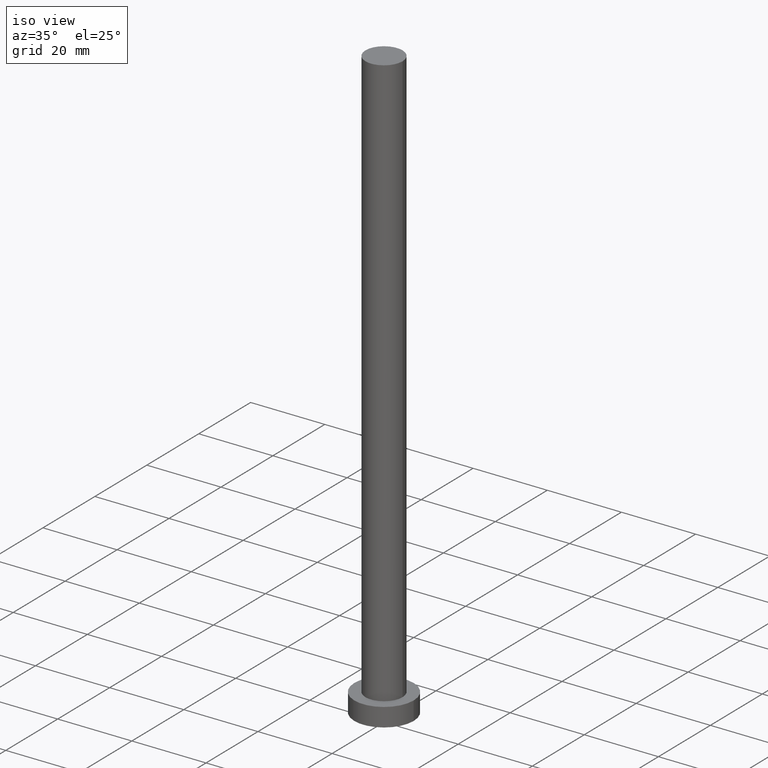
[diagram: clean part render]
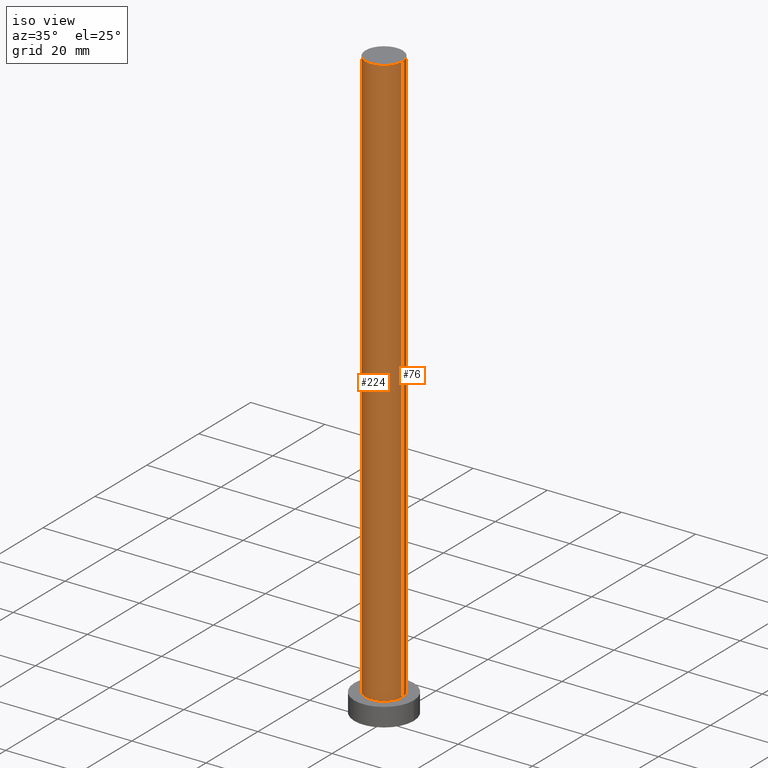
[diagram: same view with one multi-face feature highlighted, each face labeled with its STEP entity id]
A machine part, iso view. The highlighted faces form ONE feature: a constant-radius fillet chain: 2 tangent blend faces with common blend radius 5 mm. The faces share edges in the B-rep.
Their STEP definitions:
[1] entity #76 (Cylinder):
#9 = DIRECTION ( 'NONE',  ( -1.000000000000000000, 0.000000000000000000, 0.000000000000000000 ) ) ;
#30 = FACE_OUTER_BOUND ( 'NONE', #109, .T. ) ;
#35 = ORIENTED_EDGE ( 'NONE', *, *, #51, .T. ) ;
#48 = CARTESIAN_POINT ( 'NONE',  ( 0.000000000000000000, 0.000000000000000000, 5.000000000000000000 ) ) ;
#51 = EDGE_CURVE ( 'NONE', #152, #147, #107, .T. ) ;
#56 = VERTEX_POINT ( 'NONE', #92 ) ;
#64 = EDGE_CURVE ( 'NONE', #56, #187, #161, .T. ) ;
#73 = CARTESIAN_POINT ( 'NONE',  ( 5.000000000000000000, 6.123233995736766282E-16, 5.000000000000000000 ) ) ;
#76 = ADVANCED_FACE ( 'NONE', ( #30 ), #132, .T. ) ;
#78 = VECTOR ( 'NONE', #141, 1000.000000000000000 ) ;
#83 = AXIS2_PLACEMENT_3D ( 'NONE', #246, #209, #9 ) ;
#90 = AXIS2_PLACEMENT_3D ( 'NONE', #208, #244, #173 ) ;
#92 = CARTESIAN_POINT ( 'NONE',  ( 5.000000000000000000, 6.123233995736766282E-16, 160.0000000000000000 ) ) ;
#98 = LINE ( 'NONE', #178, #227 ) ;
#107 = CIRCLE ( 'NONE', #211, 5.000000000000000000 ) ;
#109 = EDGE_LOOP ( 'NONE', ( #247, #206, #35, #134 ) ) ;
#114 = EDGE_CURVE ( 'NONE', #56, #152, #216, .T. ) ;
#131 = DIRECTION ( 'NONE',  ( 0.000000000000000000, 0.000000000000000000, 1.000000000000000000 ) ) ;
#132 = CYLINDRICAL_SURFACE ( 'NONE', #83, 5.000000000000000000 ) ;
#134 = ORIENTED_EDGE ( 'NONE', *, *, #182, .F. ) ;
#141 = DIRECTION ( 'NONE',  ( -0.000000000000000000, -0.000000000000000000, -1.000000000000000000 ) ) ;
#147 = VERTEX_POINT ( 'NONE', #197 ) ;
#152 = VERTEX_POINT ( 'NONE', #73 ) ;
#161 = CIRCLE ( 'NONE', #90, 5.000000000000000000 ) ;
#173 = DIRECTION ( 'NONE',  ( 1.000000000000000000, 0.000000000000000000, 0.000000000000000000 ) ) ;
#178 = CARTESIAN_POINT ( 'NONE',  ( -5.000000000000000000, 0.000000000000000000, 160.0000000000000000 ) ) ;
#182 = EDGE_CURVE ( 'NONE', #187, #147, #98, .T. ) ;
#187 = VERTEX_POINT ( 'NONE', #215 ) ;
#193 = DIRECTION ( 'NONE',  ( 1.000000000000000000, 0.000000000000000000, 0.000000000000000000 ) ) ;
#195 = CARTESIAN_POINT ( 'NONE',  ( 5.000000000000000000, 6.123233995736766282E-16, 160.0000000000000000 ) ) ;
#197 = CARTESIAN_POINT ( 'NONE',  ( -5.000000000000000000, 0.000000000000000000, 5.000000000000000000 ) ) ;
#206 = ORIENTED_EDGE ( 'NONE', *, *, #114, .T. ) ;
#208 = CARTESIAN_POINT ( 'NONE',  ( 0.000000000000000000, 0.000000000000000000, 160.0000000000000000 ) ) ;
#209 = DIRECTION ( 'NONE',  ( -0.000000000000000000, -0.000000000000000000, -1.000000000000000000 ) ) ;
#211 = AXIS2_PLACEMENT_3D ( 'NONE', #48, #131, #193 ) ;
#215 = CARTESIAN_POINT ( 'NONE',  ( -5.000000000000000000, 0.000000000000000000, 160.0000000000000000 ) ) ;
#216 = LINE ( 'NONE', #195, #78 ) ;
#227 = VECTOR ( 'NONE', #249, 1000.000000000000000 ) ;
#244 = DIRECTION ( 'NONE',  ( 0.000000000000000000, 0.000000000000000000, 1.000000000000000000 ) ) ;
#246 = CARTESIAN_POINT ( 'NONE',  ( 0.000000000000000000, 0.000000000000000000, 160.0000000000000000 ) ) ;
#247 = ORIENTED_EDGE ( 'NONE', *, *, #64, .F. ) ;
#249 = DIRECTION ( 'NONE',  ( -0.000000000000000000, -0.000000000000000000, -1.000000000000000000 ) ) ;
[2] entity #224 (Cylinder):
#14 = CYLINDRICAL_SURFACE ( 'NONE', #139, 5.000000000000000000 ) ;
#37 = DIRECTION ( 'NONE',  ( 0.000000000000000000, 0.000000000000000000, 1.000000000000000000 ) ) ;
#38 = CARTESIAN_POINT ( 'NONE',  ( 0.000000000000000000, 0.000000000000000000, 160.0000000000000000 ) ) ;
#47 = CIRCLE ( 'NONE', #242, 5.000000000000000000 ) ;
#56 = VERTEX_POINT ( 'NONE', #92 ) ;
#58 = FACE_OUTER_BOUND ( 'NONE', #169, .T. ) ;
#59 = CARTESIAN_POINT ( 'NONE',  ( 0.000000000000000000, 0.000000000000000000, 160.0000000000000000 ) ) ;
#67 = AXIS2_PLACEMENT_3D ( 'NONE', #38, #37, #237 ) ;
#73 = CARTESIAN_POINT ( 'NONE',  ( 5.000000000000000000, 6.123233995736766282E-16, 5.000000000000000000 ) ) ;
#78 = VECTOR ( 'NONE', #141, 1000.000000000000000 ) ;
#92 = CARTESIAN_POINT ( 'NONE',  ( 5.000000000000000000, 6.123233995736766282E-16, 160.0000000000000000 ) ) ;
#98 = LINE ( 'NONE', #178, #227 ) ;
#112 = ORIENTED_EDGE ( 'NONE', *, *, #146, .T. ) ;
#114 = EDGE_CURVE ( 'NONE', #56, #152, #216, .T. ) ;
#116 = ORIENTED_EDGE ( 'NONE', *, *, #150, .F. ) ;
#118 = CARTESIAN_POINT ( 'NONE',  ( 0.000000000000000000, 0.000000000000000000, 5.000000000000000000 ) ) ;
#122 = CIRCLE ( 'NONE', #67, 5.000000000000000000 ) ;
#139 = AXIS2_PLACEMENT_3D ( 'NONE', #59, #214, #199 ) ;
#141 = DIRECTION ( 'NONE',  ( -0.000000000000000000, -0.000000000000000000, -1.000000000000000000 ) ) ;
#146 = EDGE_CURVE ( 'NONE', #147, #152, #47, .T. ) ;
#147 = VERTEX_POINT ( 'NONE', #197 ) ;
#150 = EDGE_CURVE ( 'NONE', #187, #56, #122, .T. ) ;
#152 = VERTEX_POINT ( 'NONE', #73 ) ;
#169 = EDGE_LOOP ( 'NONE', ( #210, #116, #194, #112 ) ) ;
#178 = CARTESIAN_POINT ( 'NONE',  ( -5.000000000000000000, 0.000000000000000000, 160.0000000000000000 ) ) ;
#182 = EDGE_CURVE ( 'NONE', #187, #147, #98, .T. ) ;
#187 = VERTEX_POINT ( 'NONE', #215 ) ;
#194 = ORIENTED_EDGE ( 'NONE', *, *, #182, .T. ) ;
#195 = CARTESIAN_POINT ( 'NONE',  ( 5.000000000000000000, 6.123233995736766282E-16, 160.0000000000000000 ) ) ;
#196 = DIRECTION ( 'NONE',  ( 0.000000000000000000, 0.000000000000000000, 1.000000000000000000 ) ) ;
#197 = CARTESIAN_POINT ( 'NONE',  ( -5.000000000000000000, 0.000000000000000000, 5.000000000000000000 ) ) ;
#199 = DIRECTION ( 'NONE',  ( -1.000000000000000000, 0.000000000000000000, 0.000000000000000000 ) ) ;
#210 = ORIENTED_EDGE ( 'NONE', *, *, #114, .F. ) ;
#214 = DIRECTION ( 'NONE',  ( -0.000000000000000000, -0.000000000000000000, -1.000000000000000000 ) ) ;
#215 = CARTESIAN_POINT ( 'NONE',  ( -5.000000000000000000, 0.000000000000000000, 160.0000000000000000 ) ) ;
#216 = LINE ( 'NONE', #195, #78 ) ;
#224 = ADVANCED_FACE ( 'NONE', ( #58 ), #14, .T. ) ;
#227 = VECTOR ( 'NONE', #249, 1000.000000000000000 ) ;
#237 = DIRECTION ( 'NONE',  ( 1.000000000000000000, 0.000000000000000000, 0.000000000000000000 ) ) ;
#238 = DIRECTION ( 'NONE',  ( 1.000000000000000000, 0.000000000000000000, 0.000000000000000000 ) ) ;
#242 = AXIS2_PLACEMENT_3D ( 'NONE', #118, #196, #238 ) ;
#249 = DIRECTION ( 'NONE',  ( -0.000000000000000000, -0.000000000000000000, -1.000000000000000000 ) ) ;